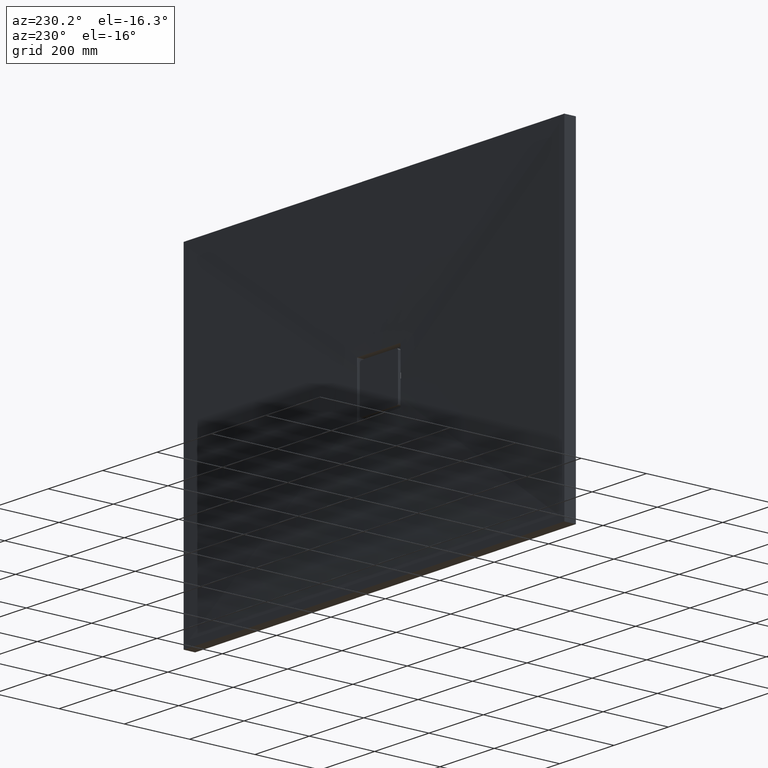
[diagram: clean part render]
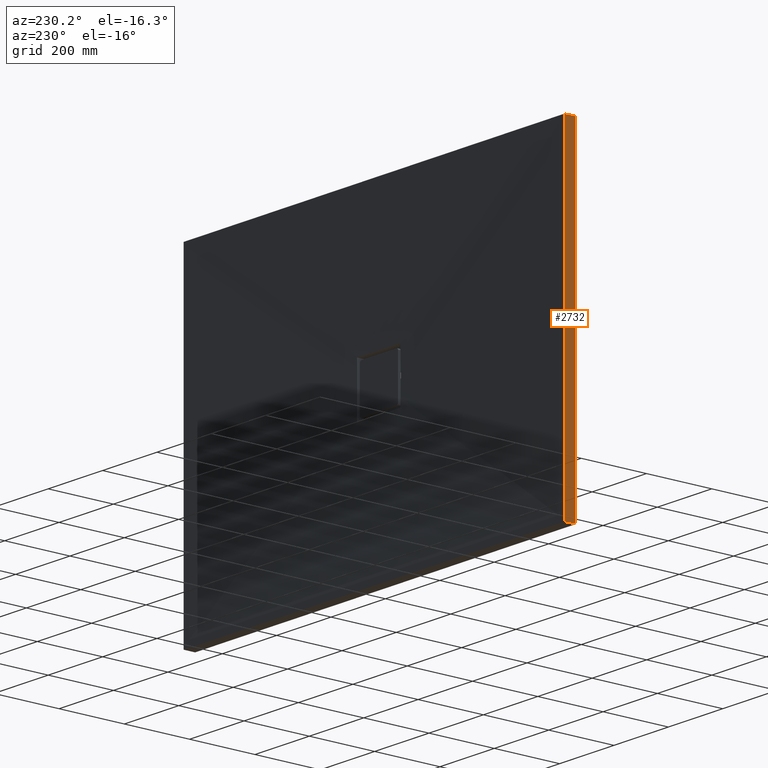
[diagram: same view with one face highlighted and labeled with its STEP entity id]
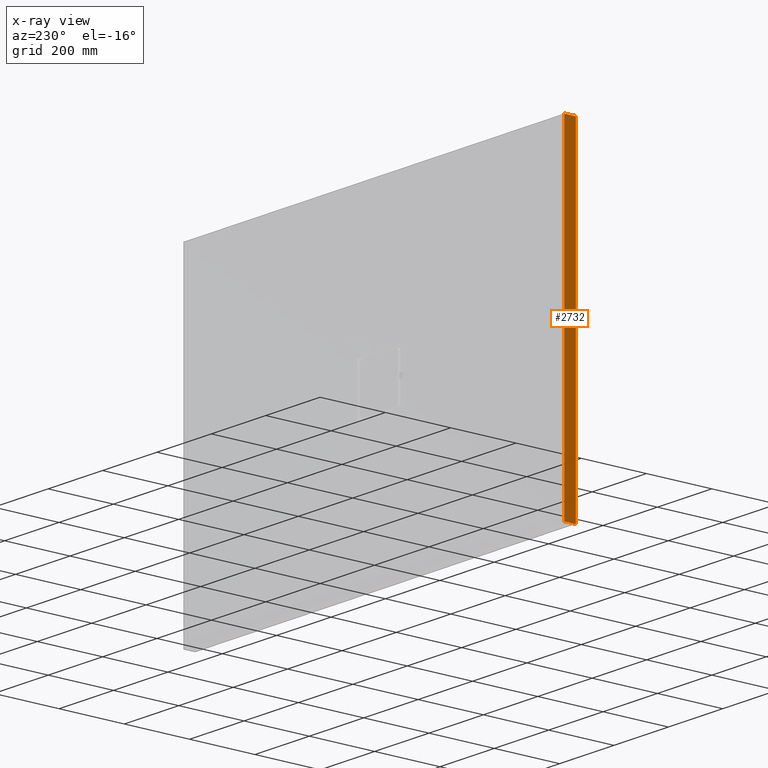
[diagram: x-ray of the same camera — body ghosted, the highlighted face saturated]
A machine part, auxiliary view. The second image highlights one B-rep face of the part: STEP entity #2732.
The next image is the same camera in x-ray: the body ghosted, the highlighted face saturated — about 0% of this face is hidden behind the body in this view.
In plain terms, the highlighted planar face has unit normal (1, 0, -0).
Its self-contained STEP definition (entity closure, byte-faithful):
#8 = AXIS2_PLACEMENT_3D ( 'NONE', #3060, #2645, #2590 ) ;
#49 = VECTOR ( 'NONE', #696, 1000.000000000000000 ) ;
#126 = VERTEX_POINT ( 'NONE', #2416 ) ;
#257 = CARTESIAN_POINT ( 'NONE',  ( -699.9999999999993200, 35.00000000000014200, -499.9999999999999400 ) ) ;
#323 = ORIENTED_EDGE ( 'NONE', *, *, #1161, .T. ) ;
#456 = CARTESIAN_POINT ( 'NONE',  ( -699.9999999999993200, 0.0000000000000000000, 500.0000000000000000 ) ) ;
#480 = CARTESIAN_POINT ( 'NONE',  ( -699.9999999999993200, 0.0000000000000000000, -499.9999999999999400 ) ) ;
#656 = CARTESIAN_POINT ( 'NONE',  ( -699.9999999999993200, 35.00000000000014200, -499.9999999999999400 ) ) ;
#678 = VECTOR ( 'NONE', #3177, 1000.000000000000000 ) ;
#695 = EDGE_CURVE ( 'NONE', #3053, #2289, #1463, .T. ) ;
#696 = DIRECTION ( 'NONE',  ( -0.0000000000000000000, -1.000000000000000000, -0.0000000000000000000 ) ) ;
#848 = ORIENTED_EDGE ( 'NONE', *, *, #2685, .F. ) ;
#893 = LINE ( 'NONE', #257, #678 ) ;
#978 = VECTOR ( 'NONE', #1963, 1000.000000000000000 ) ;
#1161 = EDGE_CURVE ( 'NONE', #126, #2696, #2067, .T. ) ;
#1200 = CARTESIAN_POINT ( 'NONE',  ( -699.9999999999993200, 35.00000000000014200, 500.0000000000000000 ) ) ;
#1295 = CARTESIAN_POINT ( 'NONE',  ( -699.9999999999993200, 35.00000000000014200, 500.0000000000000000 ) ) ;
#1463 = LINE ( 'NONE', #1200, #978 ) ;
#1477 = VECTOR ( 'NONE', #1949, 1000.000000000000000 ) ;
#1768 = ORIENTED_EDGE ( 'NONE', *, *, #695, .F. ) ;
#1935 = FACE_OUTER_BOUND ( 'NONE', #3237, .T. ) ;
#1949 = DIRECTION ( 'NONE',  ( 1.110223024625156800E-016, 0.0000000000000000000, 1.000000000000000000 ) ) ;
#1963 = DIRECTION ( 'NONE',  ( -0.0000000000000000000, -1.000000000000000000, -0.0000000000000000000 ) ) ;
#1997 = EDGE_CURVE ( 'NONE', #2696, #2289, #3220, .T. ) ;
#2067 = LINE ( 'NONE', #656, #49 ) ;
#2289 = VERTEX_POINT ( 'NONE', #456 ) ;
#2311 = ORIENTED_EDGE ( 'NONE', *, *, #1997, .T. ) ;
#2332 = CARTESIAN_POINT ( 'NONE',  ( -699.9999999999993200, 0.0000000000000000000, -499.9999999999999400 ) ) ;
#2416 = CARTESIAN_POINT ( 'NONE',  ( -699.9999999999993200, 35.00000000000014200, -499.9999999999999400 ) ) ;
#2590 = DIRECTION ( 'NONE',  ( -1.110223024625156800E-016, 0.0000000000000000000, -1.000000000000000000 ) ) ;
#2645 = DIRECTION ( 'NONE',  ( 1.000000000000000000, 0.0000000000000000000, -1.110223024625156800E-016 ) ) ;
#2685 = EDGE_CURVE ( 'NONE', #126, #3053, #893, .T. ) ;
#2696 = VERTEX_POINT ( 'NONE', #2332 ) ;
#2732 = ADVANCED_FACE ( 'NONE', ( #1935 ), #2871, .F. ) ;
#2871 = PLANE ( 'NONE',  #8 ) ;
#3053 = VERTEX_POINT ( 'NONE', #1295 ) ;
#3060 = CARTESIAN_POINT ( 'NONE',  ( -699.9999999999993200, 35.00000000000014200, -499.9999999999999400 ) ) ;
#3177 = DIRECTION ( 'NONE',  ( 1.110223024625156800E-016, 0.0000000000000000000, 1.000000000000000000 ) ) ;
#3220 = LINE ( 'NONE', #480, #1477 ) ;
#3237 = EDGE_LOOP ( 'NONE', ( #2311, #1768, #848, #323 ) ) ;